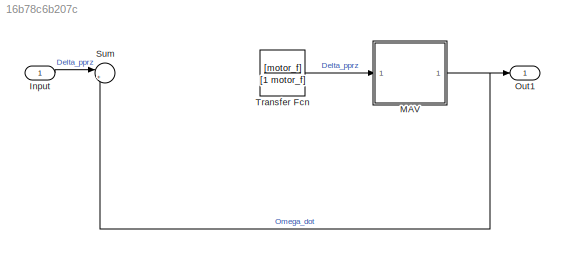
MODEL slx_16b78c6b207c
KIND model
CONFIG AbsTol = auto
CONFIG EnableMultiTasking = off
CONFIG FixedStep = auto
CONFIG MaxStep = auto
CONFIG MinStep = auto
CONFIG RelTol = 1e-3
CONFIG SampleTimeConstraint = Unconstrained
CONFIG SolverName = VariableStepAuto
CONFIG StartTime = 0.0
CONFIG StopTime = 10.0
BLOCK [Inport] Input
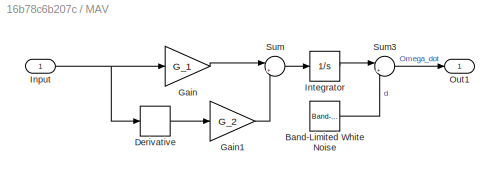
BLOCK [SubSystem] MAV
  Ports = [1, 1]
  RequestExecContextInheritance = off
BLOCK [Reference] MAV/Band-Limited White Noise  REF=simulink/Sources/Band-Limited
White Noise
  Ports = [0, 1]
  SourceBlock = simulink/Sources/Band-Limited\nWhite Noise
  SourceProductBaseCode = SL
  SourceType = Band-Limited White Noise.
BLOCK [Derivative] MAV/Derivative
BLOCK [Gain] MAV/Gain
  Gain = G_1
  Multiplication = Matrix(K*u)
BLOCK [Gain] MAV/Gain1
  Gain = G_2
  Multiplication = Matrix(K*u)
BLOCK [Inport] MAV/Input
BLOCK [Integrator] MAV/Integrator
  Ports = [1, 1]
BLOCK [Outport] MAV/Out1
  PortDimensions = 3
BLOCK [Sum] MAV/Sum
  Inputs = |++
  Ports = [2, 1]
BLOCK [Sum] MAV/Sum3
  Inputs = |++
  Ports = [2, 1]
BLOCK [Outport] Out1
  PortDimensions = 3
BLOCK [Sum] Sum
  Inputs = |++
  Ports = [2, 1]
BLOCK [TransferFcn] Transfer Fcn
  Denominator = [1 motor_f]
  Numerator = [motor_f]
LINE Input:1 -> Sum:1
LINE MAV/Band-Limited White Noise:1 -> MAV/Sum3:2
LINE MAV/Derivative:1 -> MAV/Gain1:1
LINE MAV/Gain1:1 -> MAV/Sum:2
LINE MAV/Gain:1 -> MAV/Sum:1
NET MAV/Input:1 -> MAV/Derivative:1, MAV/Gain:1
LINE MAV/Integrator:1 -> MAV/Sum3:1
LINE MAV/Sum3:1 -> MAV/Out1:1
LINE MAV/Sum:1 -> MAV/Integrator:1
NET MAV:1 -> Out1:1, Sum:2
LINE Transfer Fcn:1 -> MAV:1
note: NET lines group one-source signal fan-out (src -> all destinations, sorted); 1:1 wires keep LINE
